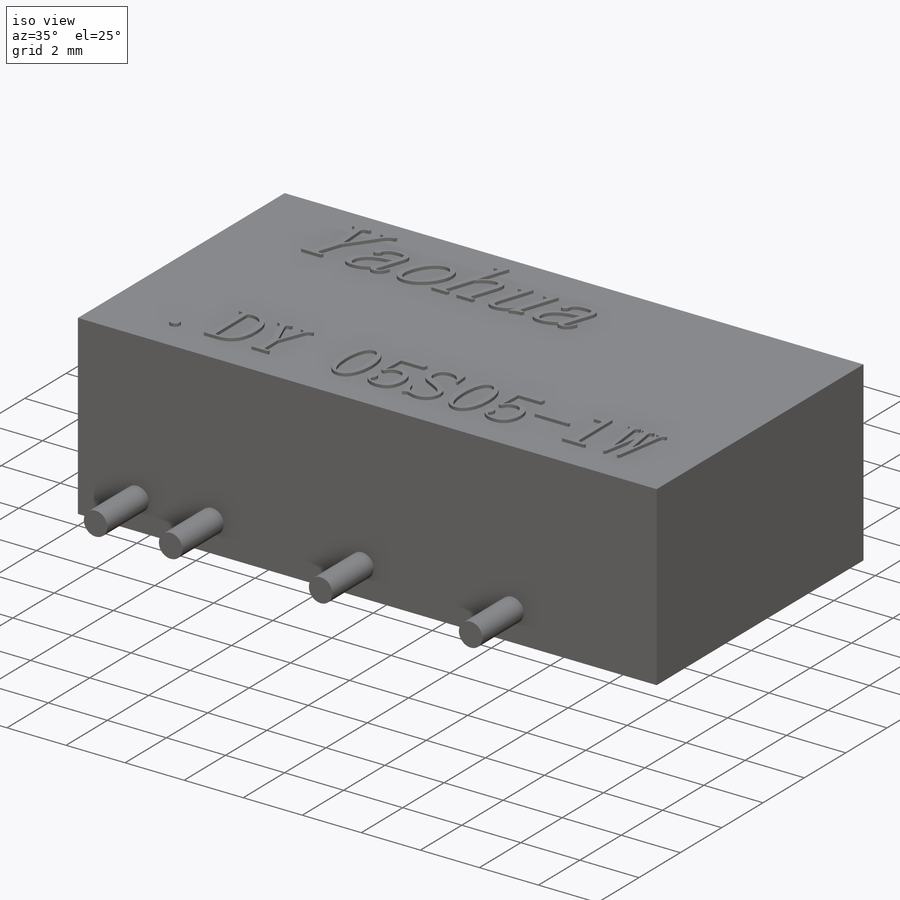
[diagram: iso view]
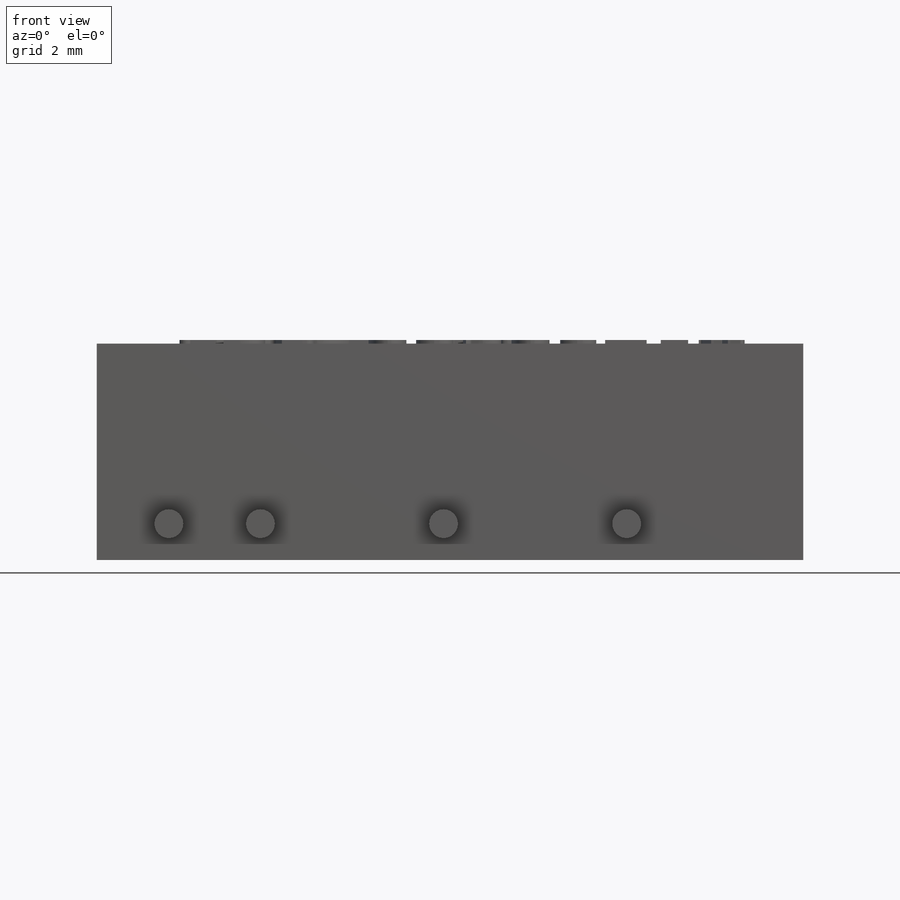
[diagram: front view]
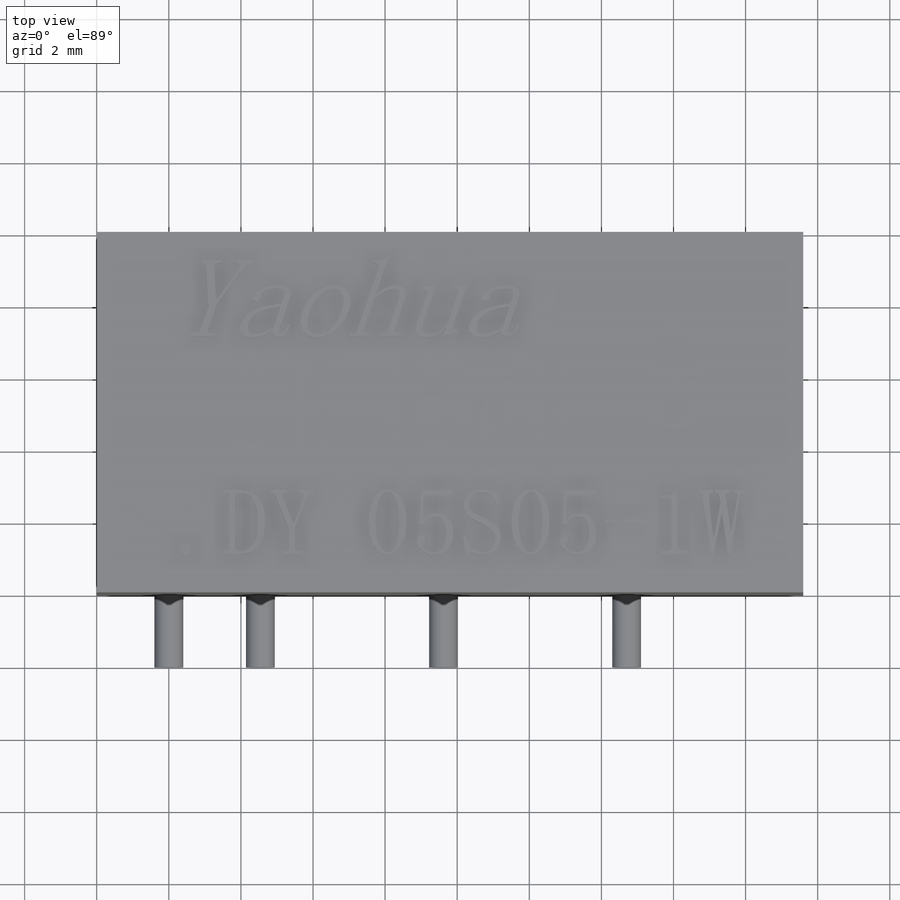
[diagram: top view]
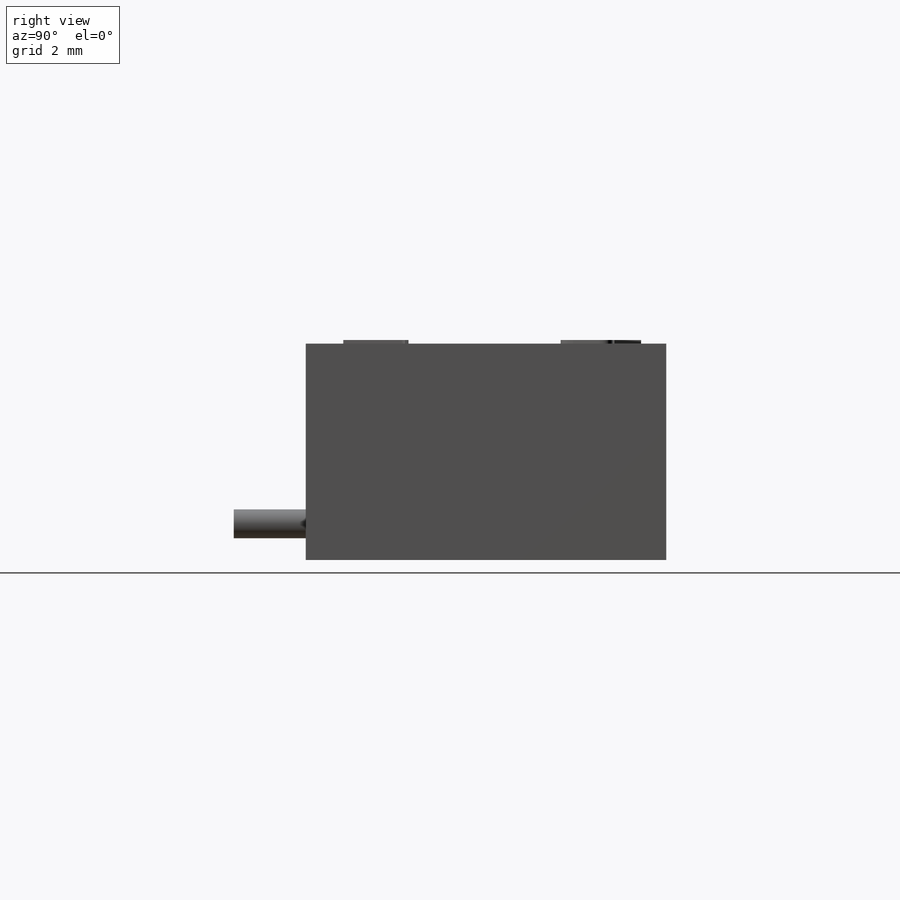
[diagram: right view]
SOLIDWORKS PART (.sldprt)
format: sldprt  version: not decoded by parser v0  size: 807,424 bytes
history: native  units: mm
features: plane x3, sketch x3, extrude x2, material x1 (+8 scaffold rows collapsed)
feature tree (17):
  scaffold x8  (default folders/planes/origin — collapsed)
  material  "材质 <未指定>"
  plane  "前视基准面"
  plane  "上视基准面"
  plane  "右视基准面"
  sketch  "草图2"  dims[D1=19.6mm D2=6.0mm]
  extrude  "凸台-拉伸1"  Depth=10mm
  sketch  "草图3"  dims[c1.D1=0.8mm c1.D2=0.8mm c1.D4=0.8mm c1.D5=0.8mm c2.D1=2.0mm c2.D2=~1.002286mm c2.D4=2.54mm c2.D5=12.7mm c2.D3=7.0]
  extrude  "凸台-拉伸2"  Depth=2mm
  sketch  "草图4"  dims[D1=0.1mm]
decode coverage: 5 of 5 modeling features carry decoded parameters
note: ~ marks probable driven/reference dimensions
note: suppression state not decoded; provenance and decode notes live in map.json
